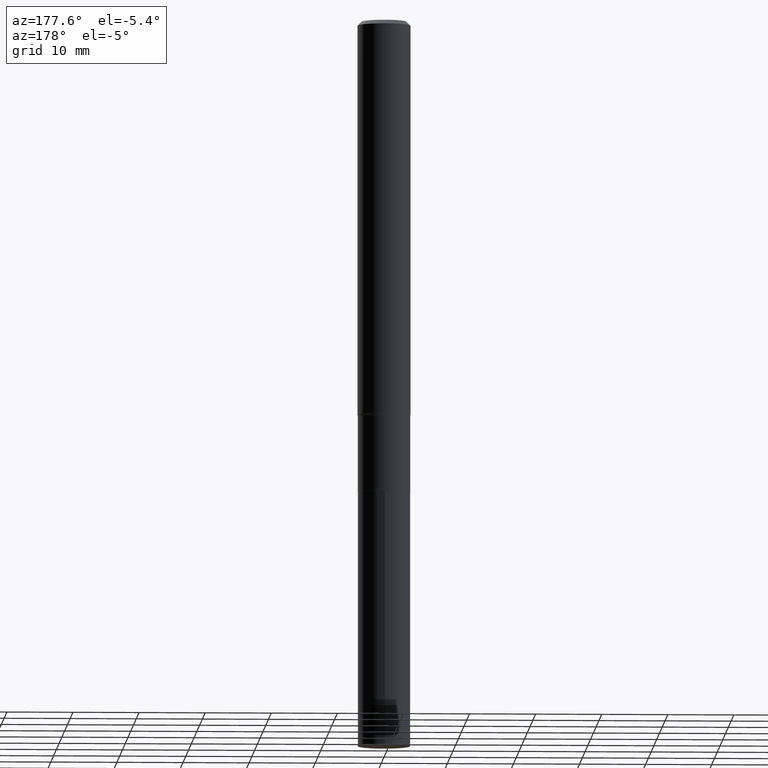
[diagram: clean part render]
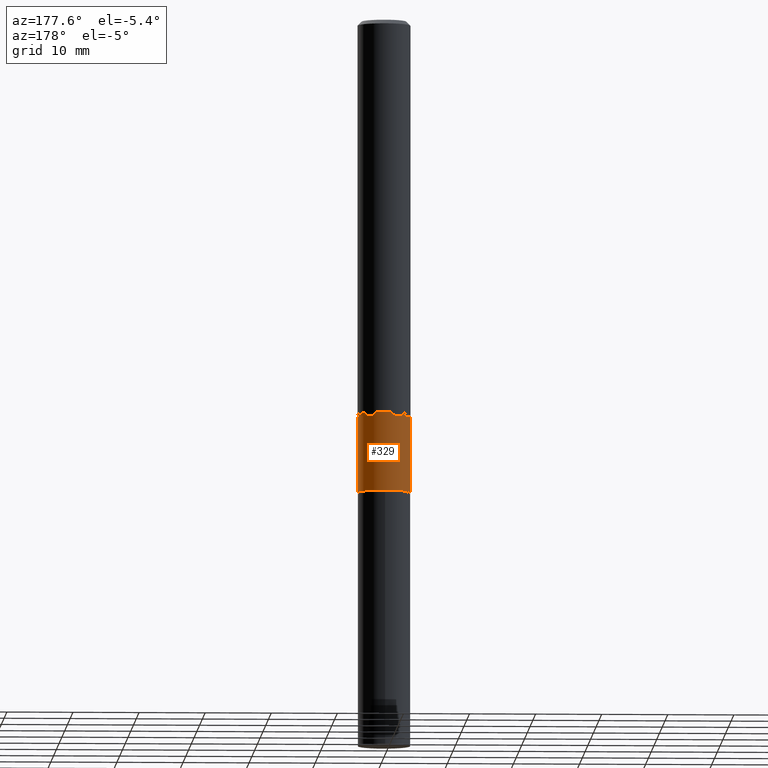
[diagram: same view with one face highlighted and labeled with its STEP entity id]
A machine part, auxiliary view. The second image highlights one B-rep face of the part: STEP entity #329.
In plain terms, the highlighted cylindrical surface (edge-blend (fillet) strip) has radius 3.9687 mm, axis along (-0, 0, 1).
Its self-contained STEP definition (entity closure, byte-faithful):
#10 = EDGE_CURVE ( 'NONE', #126, #303, #284, .T. ) ;
#17 = AXIS2_PLACEMENT_3D ( 'NONE', #124, #264, #227 ) ;
#18 = DIRECTION ( 'NONE',  ( -2.445468806185136597E-29, 3.491481338843145583E-15, 1.000000000000000000 ) ) ;
#38 = DIRECTION ( 'NONE',  ( -2.445468806185136877E-29, 3.491481338843145188E-15, 1.000000000000000000 ) ) ;
#70 = CARTESIAN_POINT ( 'NONE',  ( 0.000000000000000000, 0.000000000000000000, 0.000000000000000000 ) ) ;
#79 = DIRECTION ( 'NONE',  ( -2.445468806185136597E-29, 3.491481338843145583E-15, 1.000000000000000000 ) ) ;
#104 = VERTEX_POINT ( 'NONE', #242 ) ;
#106 = CYLINDRICAL_SURFACE ( 'NONE', #186, 0.1562499999999999722 ) ;
#113 = VECTOR ( 'NONE', #38, 39.37007874015748143 ) ;
#118 = ORIENTED_EDGE ( 'NONE', *, *, #144, .F. ) ;
#124 = CARTESIAN_POINT ( 'NONE',  ( 6.882038314366211531E-29, -9.825726783772380384E-15, -2.814200000000000479 ) ) ;
#126 = VERTEX_POINT ( 'NONE', #319 ) ;
#131 = CARTESIAN_POINT ( 'NONE',  ( 5.783044632866612545E-29, -8.256655070096271445E-15, -2.364800000000000235 ) ) ;
#144 = EDGE_CURVE ( 'NONE', #437, #104, #359, .T. ) ;
#161 = ORIENTED_EDGE ( 'NONE', *, *, #389, .F. ) ;
#168 = CARTESIAN_POINT ( 'NONE',  ( -0.1562499999999999722, 1.110223024625156343E-15, -7.685836078523288357E-30 ) ) ;
#173 = DIRECTION ( 'NONE',  ( 1.000000000000000000, -6.982962677686266711E-15, 4.876176775795936353E-29 ) ) ;
#186 = AXIS2_PLACEMENT_3D ( 'NONE', #70, #79, #173 ) ;
#205 = EDGE_CURVE ( 'NONE', #303, #104, #314, .T. ) ;
#227 = DIRECTION ( 'NONE',  ( 1.000000000000000000, -6.982962677686262766E-15, 0.000000000000000000 ) ) ;
#242 = CARTESIAN_POINT ( 'NONE',  ( -0.1562499999999999445, -7.930967902309169374E-15, -2.364800000000000235 ) ) ;
#250 = CARTESIAN_POINT ( 'NONE',  ( 0.1562499999999999722, -1.091087918388478976E-15, 7.619026212181148976E-30 ) ) ;
#255 = ORIENTED_EDGE ( 'NONE', *, *, #205, .T. ) ;
#264 = DIRECTION ( 'NONE',  ( -2.445468806185136597E-29, 3.491481338843145583E-15, 1.000000000000000000 ) ) ;
#265 = EDGE_LOOP ( 'NONE', ( #394, #255, #118, #161 ) ) ;
#284 = CIRCLE ( 'NONE', #17, 0.1562500000000000000 ) ;
#293 = VECTOR ( 'NONE', #427, 39.37007874015748143 ) ;
#303 = VERTEX_POINT ( 'NONE', #393 ) ;
#314 = LINE ( 'NONE', #168, #293 ) ;
#319 = CARTESIAN_POINT ( 'NONE',  ( 0.1562500000000000000, -1.091681470216085877E-14, -2.814200000000000479 ) ) ;
#329 = ADVANCED_FACE ( 'NONE', ( #432 ), #106, .T. ) ;
#355 = DIRECTION ( 'NONE',  ( 1.000000000000000000, -6.982962677686265133E-15, 0.000000000000000000 ) ) ;
#359 = CIRCLE ( 'NONE', #408, 0.1562499999999999445 ) ;
#389 = EDGE_CURVE ( 'NONE', #126, #437, #436, .T. ) ;
#393 = CARTESIAN_POINT ( 'NONE',  ( -0.1562500000000000000, -7.930967902309169374E-15, -2.814200000000000479 ) ) ;
#394 = ORIENTED_EDGE ( 'NONE', *, *, #10, .T. ) ;
#408 = AXIS2_PLACEMENT_3D ( 'NONE', #131, #18, #355 ) ;
#418 = CARTESIAN_POINT ( 'NONE',  ( 0.1562499999999999445, -9.347742988484751407E-15, -2.364800000000000235 ) ) ;
#427 = DIRECTION ( 'NONE',  ( -2.445468806185136877E-29, 3.491481338843145188E-15, 1.000000000000000000 ) ) ;
#432 = FACE_OUTER_BOUND ( 'NONE', #265, .T. ) ;
#436 = LINE ( 'NONE', #250, #113 ) ;
#437 = VERTEX_POINT ( 'NONE', #418 ) ;